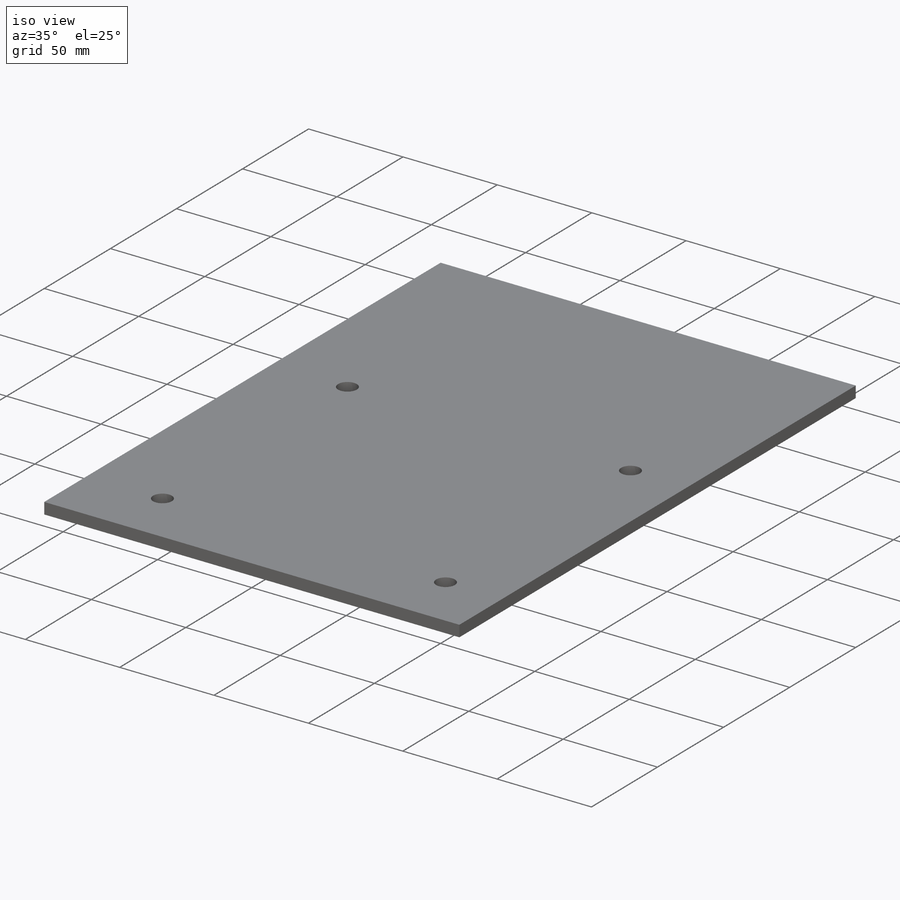
[diagram: iso view]
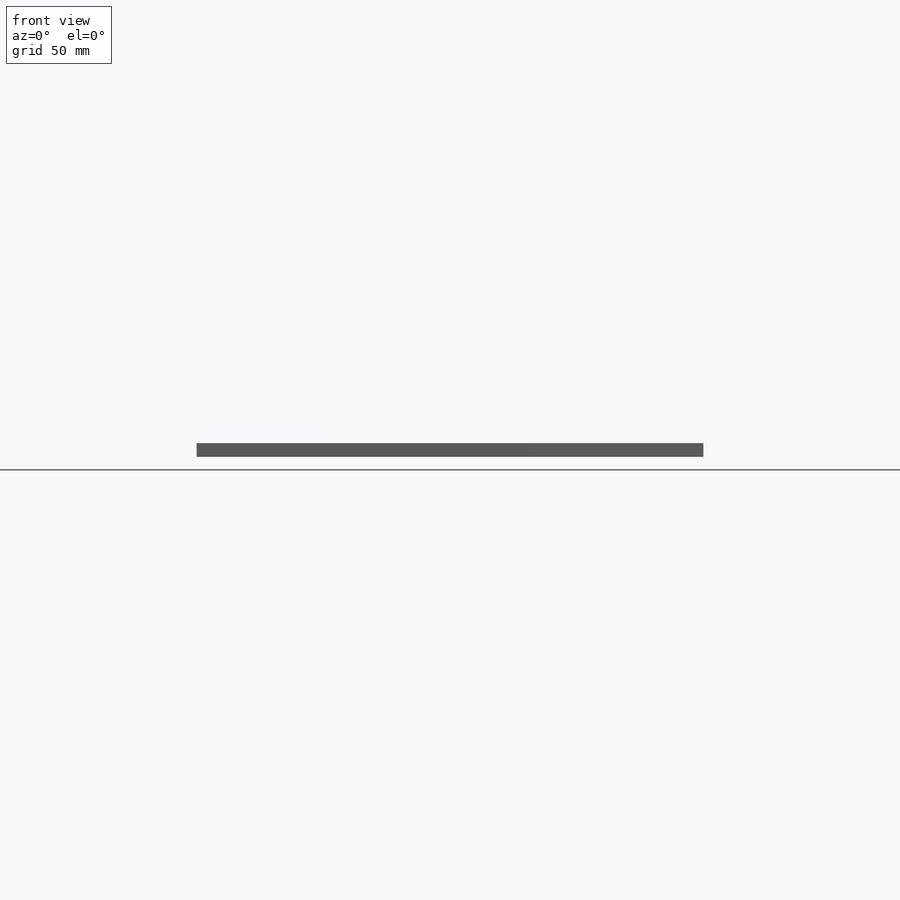
[diagram: front view]
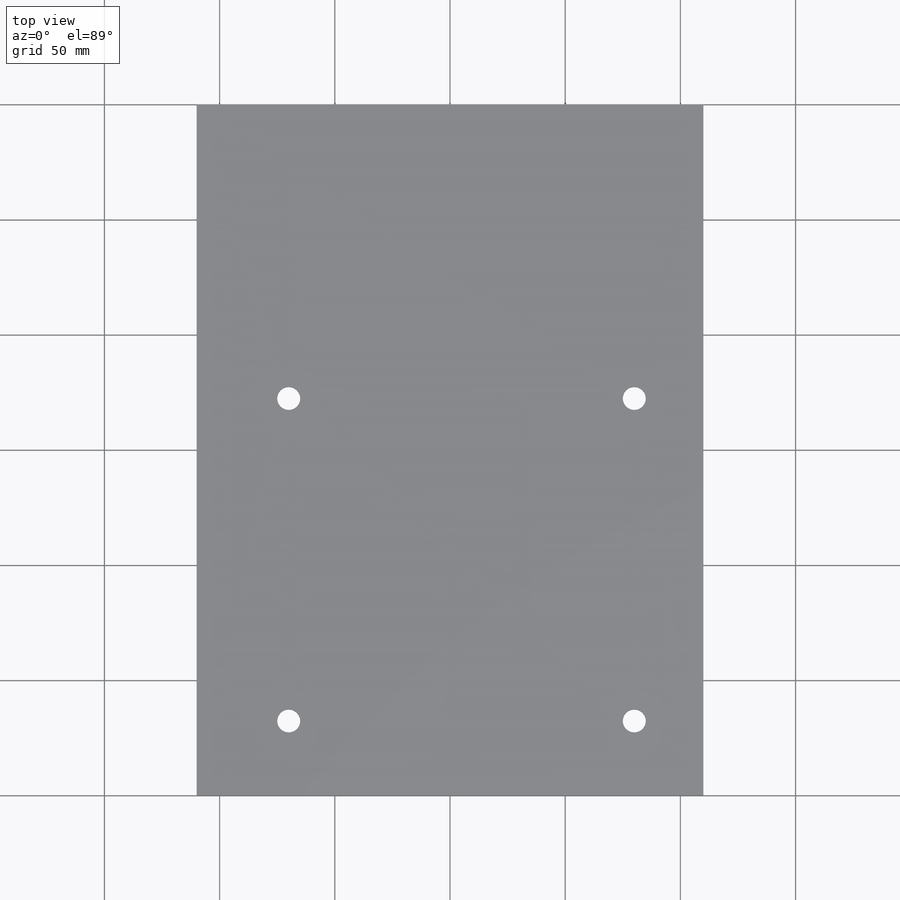
[diagram: top view]
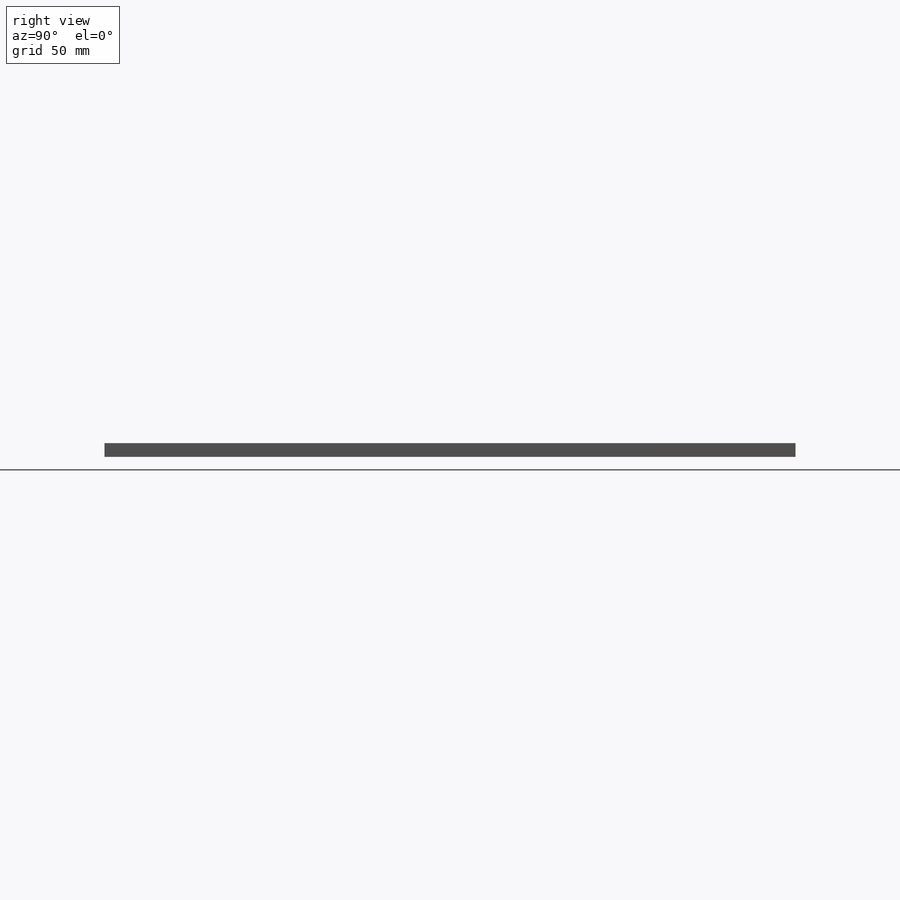
[diagram: right view]
SOLIDWORKS PART (.sldprt)
format: sldprt  version: not decoded by parser v0  size: 158,720 bytes
history: native  units: mm
features: sketch x4, material x1, extrude x1, hole x1 (+16 scaffold rows collapsed)
feature tree (23):
  scaffold x16  (default folders/planes/origin — collapsed)
  material  "Material <not specified>"
  sketch  "Sketch1"  dims[D1=220.0mm D2=300.0mm D3=110.0mm D4=150.0mm]
  extrude  "Boss-Extrude1"  Depth=6mm
  hole  "Ø10.0 (10) Diameter Hole1"  Diameter=10mm Depth=11mm
  sketch  "Sketch4"  dims[D1=150.0mm D2=140.0mm D3=150.0mm D4=40.0mm]
  sketch  "Sketch3"  dims[hole-wizard template sketch: 47 standard entries collapsed; hole parameters kept: c15.Hole Depth=11.0mm c15.D3=~14.816244mm c15.Drill Angle=118.0deg]
  sketch  "Sketch6"  dims[D1=64.4mm]
decode coverage: 6 of 6 modeling features carry decoded parameters
note: ~ marks probable driven/reference dimensions
note: suppression state not decoded; provenance and decode notes live in map.json
